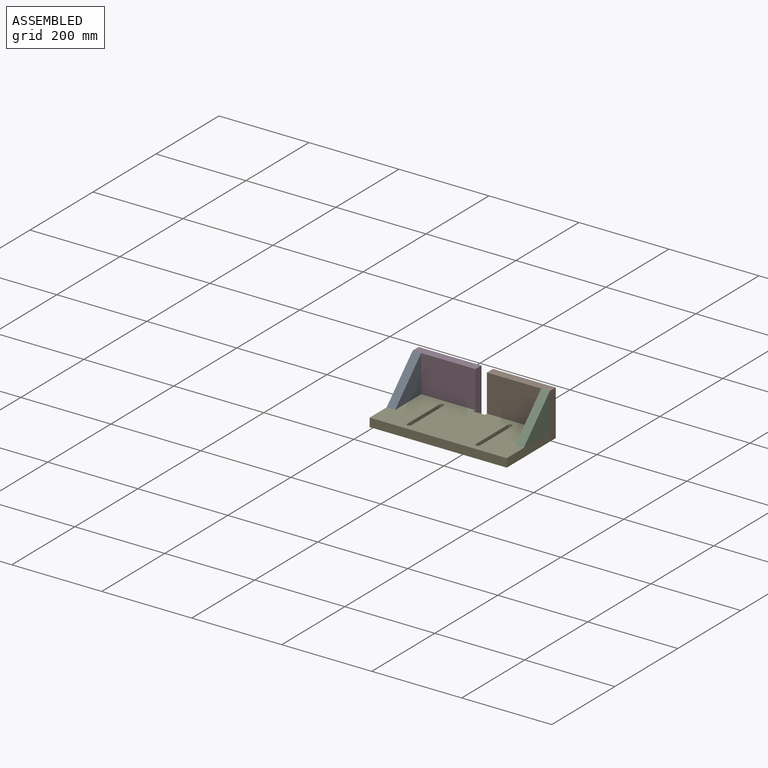
[diagram: assembled view]
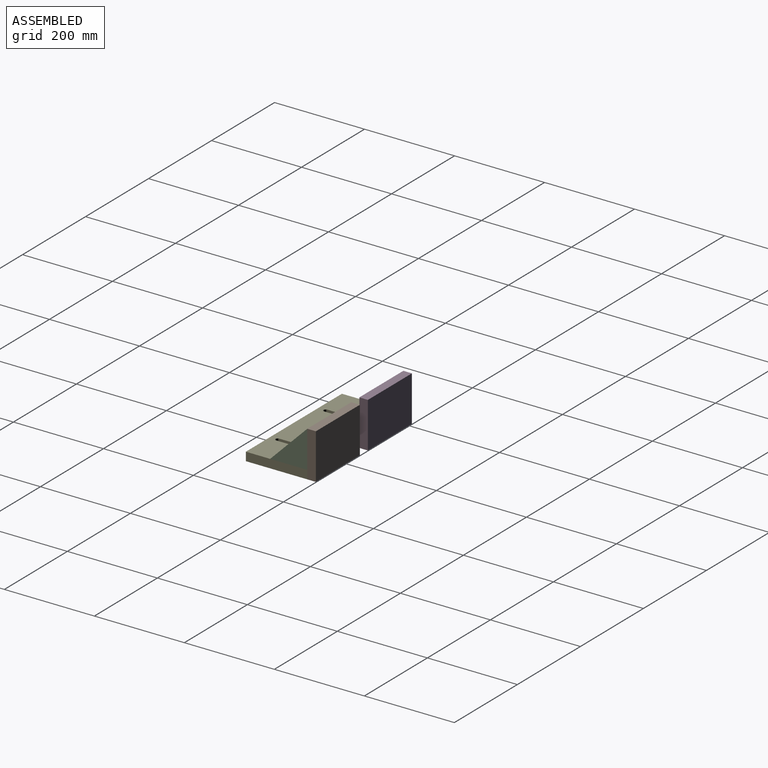
[diagram: assembled view, second angle]
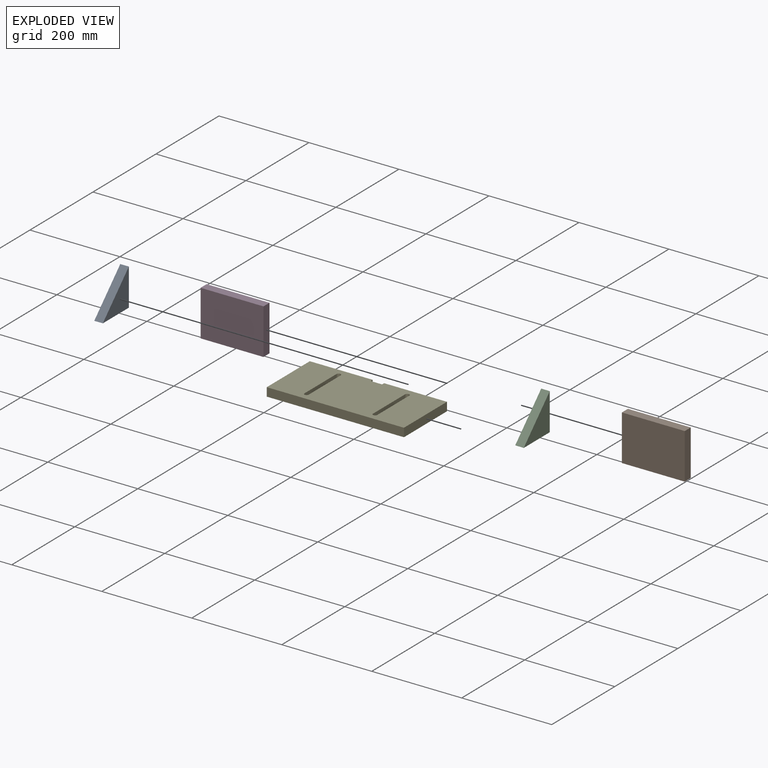
[diagram: exploded view]
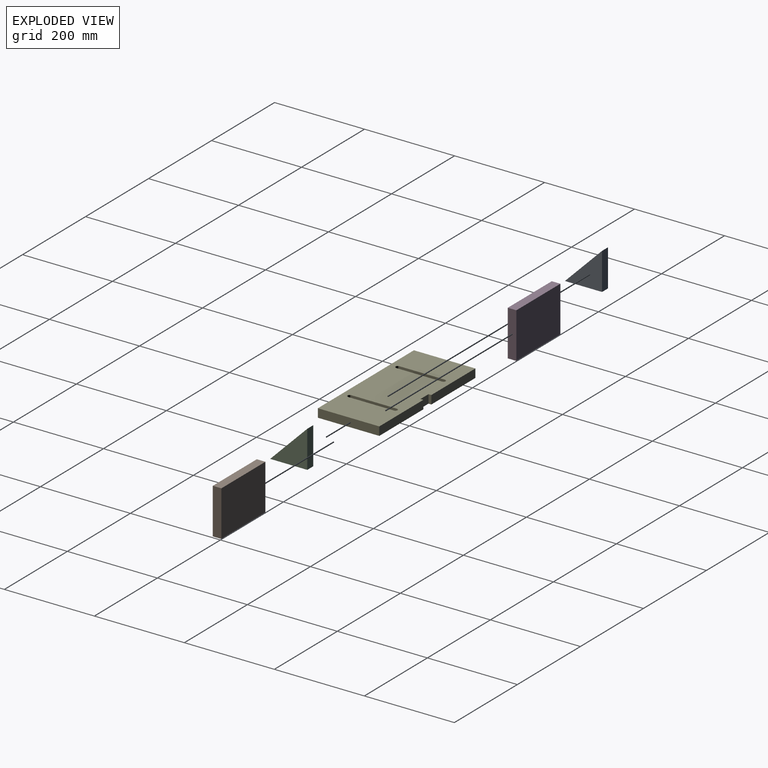
[diagram: exploded view, second angle]
ASSEMBLY  parts=5 mates=4
PART A: 5 faces, bbox 19.1x82.6x82.6 mm
  f0: plane 82.55x82.55mm, normal (1,0,0), area 3407.3mm2, adj f1,f3,f4
  f1: plane 82.55x19.05mm, normal (0,1,0), area 1572.6mm2, adj f0,f2,f3,f4
  f2: plane 82.55x82.55mm, normal (-1,0,0), area 3407.3mm2, adj f1,f3,f4
  f3: plane 82.55x19.05mm, normal (0,0,-1), area 1572.6mm2, adj f0,f1,f2,f4
  f4: plane 82.55x82.55mm, normal (0,-0.71,0.71), area 2224mm2, adj f0,f1,f2,f3
PART B: 6 faces, bbox 139.7x19.1x101.6 mm
  f0: plane 101.6x19.05mm, normal (1,0,0), area 1935.5mm2, adj f1,f3,f4,f5
  f1: plane 139.7x101.6mm, normal (0,1,0), area 14193.5mm2, adj f0,f2,f4,f5
  f2: plane 101.6x19.05mm, normal (-1,0,0), area 1935.5mm2, adj f1,f3,f4,f5
  f3: plane 139.7x101.6mm, normal (0,-1,0), area 14193.5mm2, adj f0,f2,f4,f5
  f4: plane 139.7x19.05mm, normal (0,0,1), area 2661.3mm2, adj f0,f1,f2,f3
  f5: plane 139.7x19.05mm, normal (0,0,-1), area 2661.3mm2, adj f0,f1,f2,f3
PART C: same geometry as A
PART D: same geometry as B
PART E: 18 faces, bbox 304.8x136.5x19.1 mm
  f0: cylinder r=4.76mm len=19.05mm, axis (0,0,-1), area 285mm2, adj f1,f15,f16,f17
  f1: plane 101.6x19.05mm, normal (-1,0,0), area 1935.5mm2, adj f0,f2,f16,f17
  f2: cylinder r=4.76mm len=19.05mm, axis (0,0,-1), area 285mm2, adj f1,f15,f16,f17
  f3: cylinder r=4.76mm len=19.05mm, axis (0,0,-1), area 285mm2, adj f4,f13,f16,f17
  f4: plane 101.6x19.05mm, normal (1,0,0), area 1935.5mm2, adj f3,f5,f16,f17
  f5: cylinder r=4.76mm len=19.05mm, axis (0,0,-1), area 285mm2, adj f4,f13,f16,f17
  f6: plane 139.7x19.05mm, normal (0,1,0), area 2661.3mm2, adj f7,f14,f16,f17
  f7: plane 136.53x19.05mm, normal (-1,0,0), area 2600.8mm2, adj f6,f8,f16,f17
  f8: plane 304.8x19.05mm, normal (0,-1,0), area 5806.4mm2, adj f7,f9,f16,f17
  f9: plane 136.53x19.05mm, normal (1,0,0), area 2600.8mm2, adj f8,f10,f16,f17
  f10: plane 139.7x19.05mm, normal (0,1,0), area 2661.3mm2, adj f9,f11,f16,f17
  f11: plane 19.05x6.35mm, normal (-1,0,0), area 121mm2, adj f10,f12,f16,f17
  f12: plane 25.4x19.05mm, normal (0,1,0), area 483.9mm2, adj f11,f14,f16,f17
  f13: plane 101.6x19.05mm, normal (-1,0,0), area 1935.5mm2, adj f3,f5,f16,f17
  f14: plane 19.05x6.35mm, normal (1,0,0), area 121mm2, adj f6,f12,f16,f17
  f15: plane 101.6x19.05mm, normal (1,0,0), area 1935.5mm2, adj f0,f2,f16,f17
  f16: plane 304.8x136.53mm, normal (0,0,1), area 39373.5mm2, adj f0,f1,f2,f3,f4,f5,f6,f7
  f17: plane 304.8x136.53mm, normal (0,0,-1), area 39373.5mm2, adj f0,f1,f2,f3,f4,f5,f6,f7
PLACE A t=(-47.5,5.62,-71.87)mm
PLACE B t=(117.6,5.62,-90.92)mm
PLACE C t=(238.25,5.62,-71.87)mm
PLACE D t=(-47.5,5.62,-90.92)mm
PLACE E t=(-47.5,5.62,-90.92)mm
MATE fastened C.f0 <-> E.f9  axis (1,0,0) through (104.9,-13.43,-71.87)mm
MATE fastened D.f2 <-> E.f7  axis (-1,0,0) through (-199.9,-13.43,-90.92)mm
MATE fastened A.f2 <-> E.f7  axis (-1,0,0) through (-199.9,-13.43,-71.87)mm
MATE fastened B.f0 <-> E.f9  axis (1,0,0) through (104.9,-13.43,-90.92)mm
